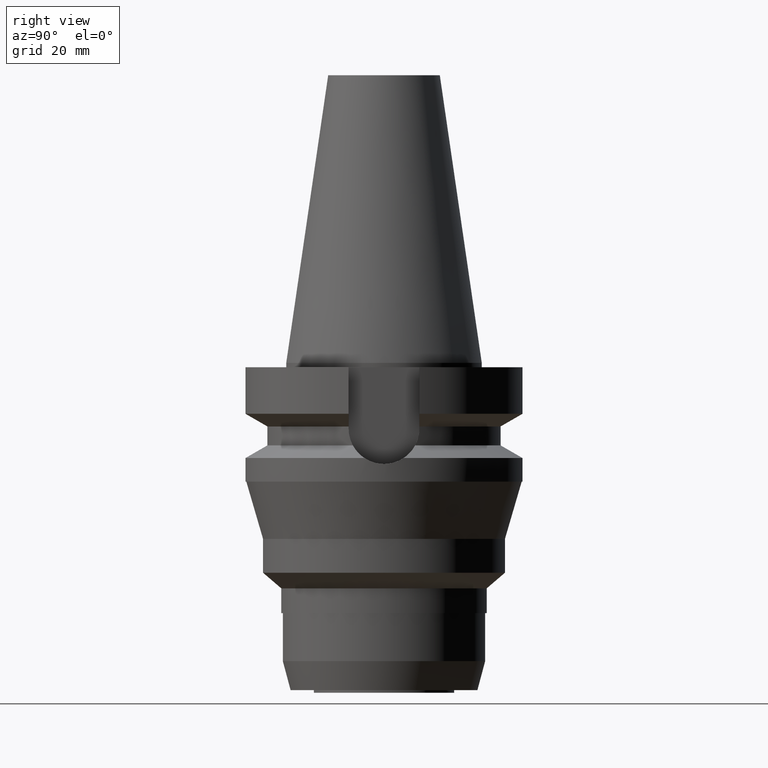
[diagram: clean part render]
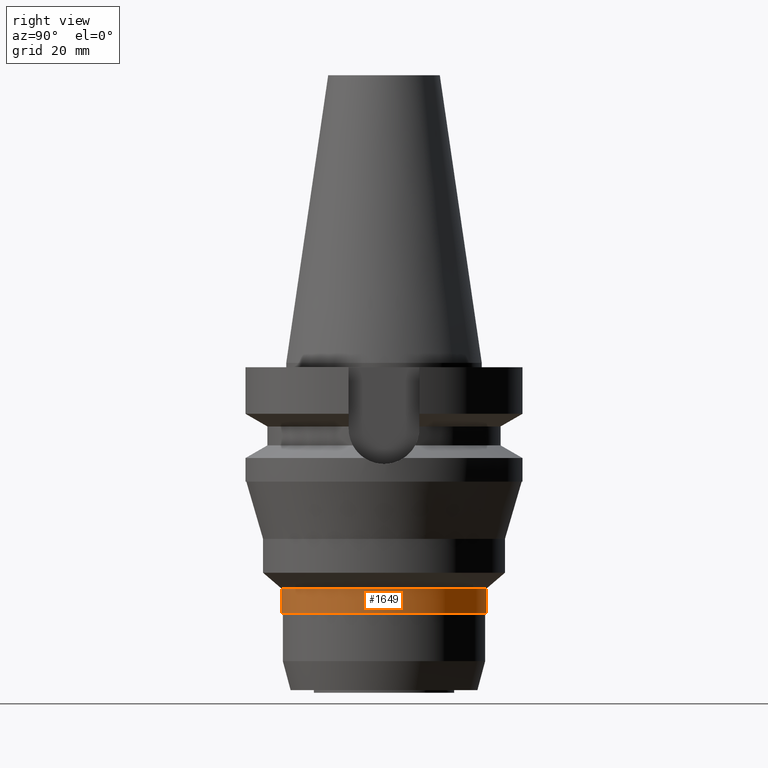
[diagram: same view with one face highlighted and labeled with its STEP entity id]
A machine part, right view. The second image highlights one B-rep face of the part: STEP entity #1649.
In plain terms, the highlighted cylindrical surface (partial cylindrical patch) has radius 23.35 mm, axis along (0, 0, -1).
Its self-contained STEP definition (entity closure, byte-faithful):
#384=CARTESIAN_POINT('',(0.E0,0.E0,-5.69E1));
#385=DIRECTION('',(0.E0,0.E0,1.E0));
#386=DIRECTION('',(0.E0,-1.E0,0.E0));
#387=AXIS2_PLACEMENT_3D('',#384,#385,#386);
#416=DIRECTION('',(0.E0,-1.636899369762E-14,-1.E0));
#417=VECTOR('',#416,5.643019806540E0);
#418=CARTESIAN_POINT('',(0.E0,2.335E1,-5.125698019346E1));
#419=LINE('',#418,#417);
#423=DIRECTION('',(0.E0,1.636899369762E-14,-1.E0));
#424=VECTOR('',#423,5.643019806540E0);
#425=CARTESIAN_POINT('',(0.E0,-2.335E1,-5.125698019346E1));
#426=LINE('',#425,#424);
#460=CARTESIAN_POINT('',(0.E0,0.E0,-5.125698019346E1));
#461=DIRECTION('',(0.E0,0.E0,-1.E0));
#462=DIRECTION('',(0.E0,1.E0,0.E0));
#463=AXIS2_PLACEMENT_3D('',#460,#461,#462);
#1164=CARTESIAN_POINT('',(0.E0,-2.335E1,-5.69E1));
#1165=CARTESIAN_POINT('',(0.E0,2.335E1,-5.69E1));
#1166=VERTEX_POINT('',#1164);
#1167=VERTEX_POINT('',#1165);
#1168=CARTESIAN_POINT('',(0.E0,2.335E1,-5.125698019346E1));
#1169=VERTEX_POINT('',#1168);
#1170=CARTESIAN_POINT('',(0.E0,-2.335E1,-5.125698019346E1));
#1171=VERTEX_POINT('',#1170);
#1635=CARTESIAN_POINT('',(0.E0,0.E0,7.242E1));
#1636=DIRECTION('',(0.E0,0.E0,-1.E0));
#1637=DIRECTION('',(0.E0,-1.E0,0.E0));
#1638=AXIS2_PLACEMENT_3D('',#1635,#1636,#1637);
#1639=CYLINDRICAL_SURFACE('',#1638,2.335E1);
#1641=ORIENTED_EDGE('',*,*,#1640,.T.);
#1642=ORIENTED_EDGE('',*,*,#1624,.F.);
#1644=ORIENTED_EDGE('',*,*,#1643,.F.);
#1646=ORIENTED_EDGE('',*,*,#1645,.F.);
#1647=EDGE_LOOP('',(#1641,#1642,#1644,#1646));
#1648=FACE_OUTER_BOUND('',#1647,.F.);
#388=CIRCLE('',#387,2.335E1);
#464=CIRCLE('',#463,2.335E1);
#1624=EDGE_CURVE('',#1166,#1167,#388,.T.);
#1640=EDGE_CURVE('',#1169,#1167,#419,.T.);
#1643=EDGE_CURVE('',#1171,#1166,#426,.T.);
#1645=EDGE_CURVE('',#1169,#1171,#464,.T.);
#1649=ADVANCED_FACE('',(#1648),#1639,.T.);